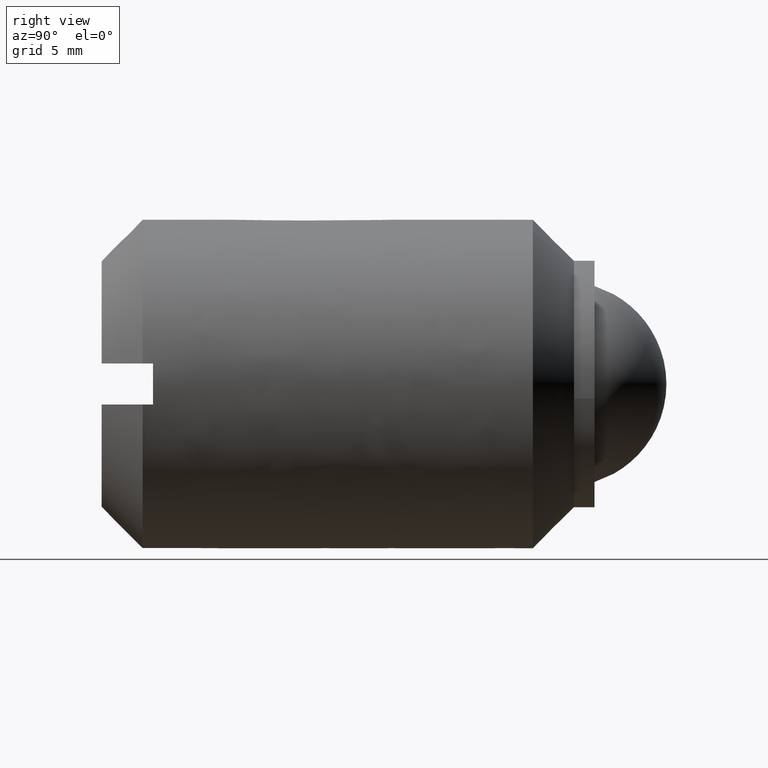
[diagram: clean part render]
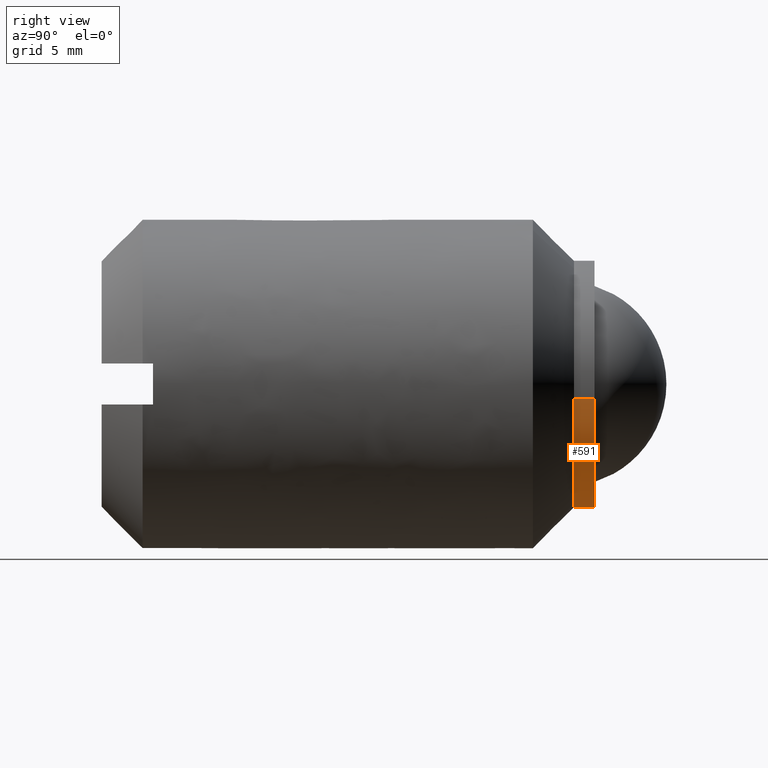
[diagram: same view with one face highlighted and labeled with its STEP entity id]
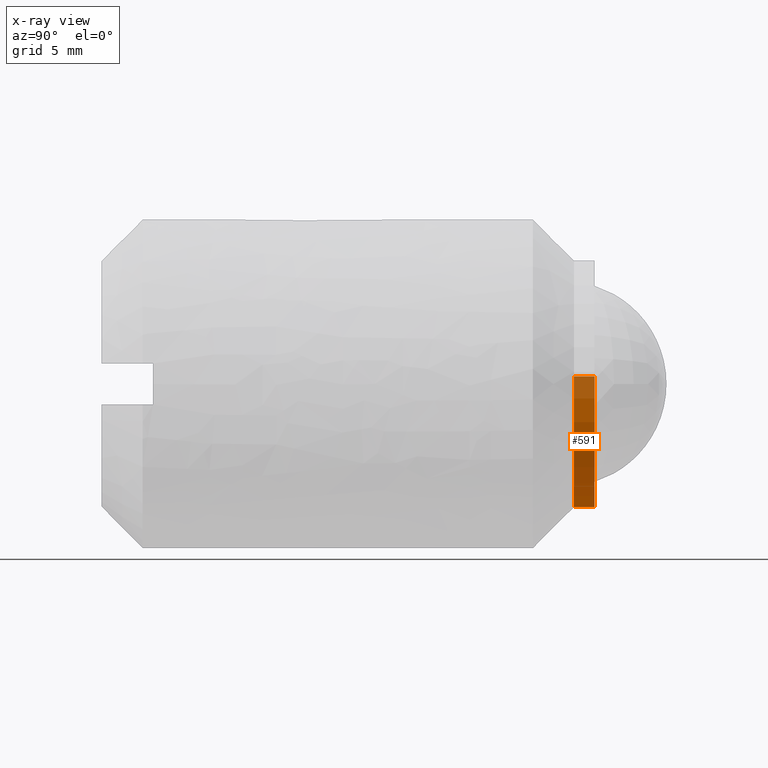
[diagram: x-ray of the same camera — body ghosted, the highlighted face saturated]
A machine part, right view. The second image highlights one B-rep face of the part: STEP entity #591.
The next image is the same camera in x-ray: the body ghosted, the highlighted face saturated — about 17% of this face is hidden behind the body in this view.
In plain terms, the highlighted face is a freeform B-spline surface patch.
Its self-contained STEP definition (entity closure, byte-faithful):
#269=CARTESIAN_POINT('',(-5.988808790485078,-4.500000000000000,0.366291237963246));
#270=VERTEX_POINT('',#269);
#366=CARTESIAN_POINT('',(5.958058000617179,-4.499999999999801,-0.708198320550592));
#367=VERTEX_POINT('',#366);
#432=CARTESIAN_POINT('',(0.0,-4.500000000000000,-6.000000000000002));
#433=VERTEX_POINT('',#432);
#434=CARTESIAN_POINT('',(-5.988808790485078,-4.500000000000000,0.366291237963247));
#435=CARTESIAN_POINT('',(-6.0,-4.500000000000001,0.183316581303974));
#436=CARTESIAN_POINT('',(-6.0,-4.500000000000000,-1.806294E-015));
#437=CARTESIAN_POINT('',(-6.0,-4.500000000000000,-6.000000000000003));
#438=CARTESIAN_POINT('',(0.0,-4.500000000000000,-6.000000000000002));
#446=(BOUNDED_CURVE()B_SPLINE_CURVE(2,(#434,#435,#436,#437,#438),.UNSPECIFIED.,.F.,.U.)B_SPLINE_CURVE_WITH_KNOTS((3,2,3),(0.739332962155060,0.750000000000000,1.0),.UNSPECIFIED.)CURVE()GEOMETRIC_REPRESENTATION_ITEM()RATIONAL_B_SPLINE_CURVE((0.976072041486941,0.987502787801563,1.0,0.707106781186548,1.0))REPRESENTATION_ITEM(''));
#447=EDGE_CURVE('',#270,#433,#446,.T.);
#449=CARTESIAN_POINT('',(0.0,-4.500000000000000,-6.000000000000002));
#450=CARTESIAN_POINT('',(5.329053539489210,-4.499999999999999,-6.000000000000004));
#451=CARTESIAN_POINT('',(5.958058000617180,-4.499999999999801,-0.708198320550592));
#459=(BOUNDED_CURVE()B_SPLINE_CURVE(2,(#449,#450,#451),.UNSPECIFIED.,.F.,.U.)B_SPLINE_CURVE_WITH_KNOTS((3,3),(0.0,0.229562674552993),.UNSPECIFIED.)CURVE()GEOMETRIC_REPRESENTATION_ITEM()RATIONAL_B_SPLINE_CURVE((1.0,0.731050597322995,0.956027148229696))REPRESENTATION_ITEM(''));
#460=EDGE_CURVE('',#433,#367,#459,.T.);
#488=CARTESIAN_POINT('',(5.958057990228132,-3.500000000000000,-0.708198407954307));
#489=VERTEX_POINT('',#488);
#490=CARTESIAN_POINT('',(5.958057990228132,-3.500000000000000,-0.708198407954307));
#491=CARTESIAN_POINT('',(5.958058000617179,-4.499999999999801,-0.708198320550592));
#492=QUASI_UNIFORM_CURVE('',1,(#490,#491),.UNSPECIFIED.,.F.,.U.);
#493=EDGE_CURVE('',#489,#367,#492,.T.);
#512=CARTESIAN_POINT('',(-5.988808790438955,-3.500000000000000,0.366291238717353));
#513=VERTEX_POINT('',#512);
#527=CARTESIAN_POINT('',(-5.988808790438955,-3.500000000000000,0.366291238717353));
#528=CARTESIAN_POINT('',(-5.988808790485078,-4.500000000000000,0.366291237963246));
#529=QUASI_UNIFORM_CURVE('',1,(#527,#528),.UNSPECIFIED.,.F.,.U.);
#530=EDGE_CURVE('',#513,#270,#529,.T.);
#537=CARTESIAN_POINT('',(-5.988808790531200,-3.475000000000000,0.366291237209140));
#538=CARTESIAN_POINT('',(-6.355100027740342,-3.475000000000001,-5.622517553322060));
#539=CARTESIAN_POINT('',(-0.366291237209142,-3.475000000000000,-5.988808790531202));
#540=CARTESIAN_POINT('',(5.289260945037006,-3.475000000000001,-6.334717180395167));
#541=CARTESIAN_POINT('',(5.958057158181998,-3.475000000000000,-0.708205407940553));
#542=CARTESIAN_POINT('',(-5.988808790531200,-4.525625000000001,0.366291237209140));
#543=CARTESIAN_POINT('',(-6.355100027740342,-4.525625000000001,-5.622517553322060));
#544=CARTESIAN_POINT('',(-0.366291237209142,-4.525625000000001,-5.988808790531202));
#545=CARTESIAN_POINT('',(5.289260945037006,-4.525624999999999,-6.334717180395167));
#546=CARTESIAN_POINT('',(5.958057158181998,-4.525625000000001,-0.708205407940553));
#554=(BOUNDED_SURFACE()B_SPLINE_SURFACE(2,1,((#537,#542),(#538,#543),(#539,#544),(#540,#545),(#541,#546)),.UNSPECIFIED.,.F.,.F.,.U.)B_SPLINE_SURFACE_WITH_KNOTS((3,2,3),(2,2),(0.0,9.941125496954280,19.484605974030391),(0.0,1.0),.UNSPECIFIED.)GEOMETRIC_REPRESENTATION_ITEM()RATIONAL_B_SPLINE_SURFACE(((1.0,1.0),(0.707106781186548,0.707106781186548),(1.0,1.0),(0.718822509939086,0.718822509939086),(0.977505800795127,0.977505800795127)))REPRESENTATION_ITEM('')SURFACE());
#555=ORIENTED_EDGE('',*,*,#460,.F.);
#556=ORIENTED_EDGE('',*,*,#447,.F.);
#557=ORIENTED_EDGE('',*,*,#530,.F.);
#558=CARTESIAN_POINT('',(0.0,-3.500000000000000,-6.000000000000002));
#559=VERTEX_POINT('',#558);
#560=CARTESIAN_POINT('',(-5.988808790438955,-3.500000000000000,0.366291238717353));
#561=CARTESIAN_POINT('',(-6.0,-3.500000000000000,0.183316581303974));
#562=CARTESIAN_POINT('',(-6.0,-3.500000000000000,-1.806294E-015));
#563=CARTESIAN_POINT('',(-6.0,-3.499999999999999,-6.000000000000003));
#564=CARTESIAN_POINT('',(0.0,-3.500000000000000,-6.000000000000002));
#572=(BOUNDED_CURVE()B_SPLINE_CURVE(2,(#560,#561,#562,#563,#564),.UNSPECIFIED.,.F.,.U.)B_SPLINE_CURVE_WITH_KNOTS((3,2,3),(0.739332962155060,0.750000000000000,1.0),.UNSPECIFIED.)CURVE()GEOMETRIC_REPRESENTATION_ITEM()RATIONAL_B_SPLINE_CURVE((0.976072041486941,0.987502787801563,1.0,0.707106781186548,1.0))REPRESENTATION_ITEM(''));
#573=EDGE_CURVE('',#513,#559,#572,.T.);
#574=ORIENTED_EDGE('',*,*,#573,.T.);
#575=CARTESIAN_POINT('',(0.0,-3.500000000000000,-6.000000000000002));
#576=CARTESIAN_POINT('',(5.329053460762573,-3.500000000000000,-6.000000000000002));
#577=CARTESIAN_POINT('',(5.958057990228133,-3.500000000000000,-0.708198407954307));
#585=(BOUNDED_CURVE()B_SPLINE_CURVE(2,(#575,#576,#577),.UNSPECIFIED.,.F.,.U.)B_SPLINE_CURVE_WITH_KNOTS((3,3),(0.0,0.229562672073743),.UNSPECIFIED.)CURVE()GEOMETRIC_REPRESENTATION_ITEM()RATIONAL_B_SPLINE_CURVE((1.0,0.731050600227617,0.956027143370255))REPRESENTATION_ITEM(''));
#586=EDGE_CURVE('',#559,#489,#585,.T.);
#587=ORIENTED_EDGE('',*,*,#586,.T.);
#588=ORIENTED_EDGE('',*,*,#493,.T.);
#589=EDGE_LOOP('',(#555,#556,#557,#574,#587,#588));
#590=FACE_OUTER_BOUND('',#589,.T.);
#591=ADVANCED_FACE('',(#590),#554,.T.);